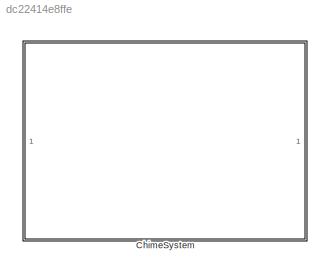
MODEL slx_dc22414e8ffe
KIND library
CONFIG AbsTol = auto
CONFIG EnableMultiTasking = off
CONFIG FixedStep = auto
CONFIG MaxStep = auto
CONFIG MinStep = auto
CONFIG RelTol = 1e-3
CONFIG SampleTimeConstraint = Unconstrained
CONFIG SolverName = VariableStepAuto
CONFIG StartTime = 0.0
CONFIG StopTime = 10.0
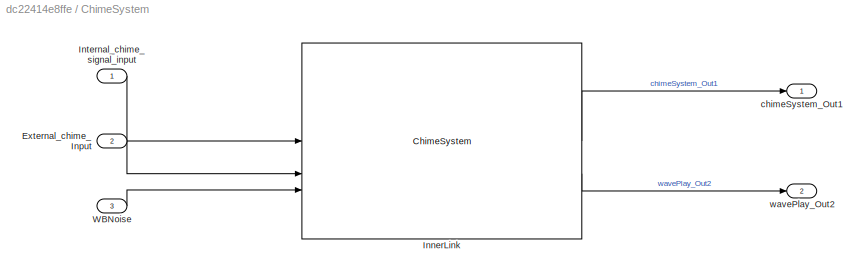
BLOCK [SubSystem] ChimeSystem
BLOCK [Inport] ChimeSystem/External_chime_Input
  Port = 2
BLOCK [Reference] ChimeSystem/InnerLink  REF=ChimeSystemLibBtc/ChimeSystem
  SourceBlock = ChimeSystemLibBtc/ChimeSystem
  SourceProductName = Bose Blocklib
BLOCK [Inport] ChimeSystem/Internal_chime_signal_input
BLOCK [Inport] ChimeSystem/WBNoise
  Port = 3
BLOCK [Outport] ChimeSystem/chimeSystem_Out1
BLOCK [Outport] ChimeSystem/wavePlay_Out2
  Port = 2
LINE ChimeSystem/External_chime_Input:1 -> ChimeSystem/InnerLink:2
LINE ChimeSystem/InnerLink:1 -> ChimeSystem/chimeSystem_Out1:1
LINE ChimeSystem/InnerLink:2 -> ChimeSystem/wavePlay_Out2:1
LINE ChimeSystem/Internal_chime_signal_input:1 -> ChimeSystem/InnerLink:1
LINE ChimeSystem/WBNoise:1 -> ChimeSystem/InnerLink:3
